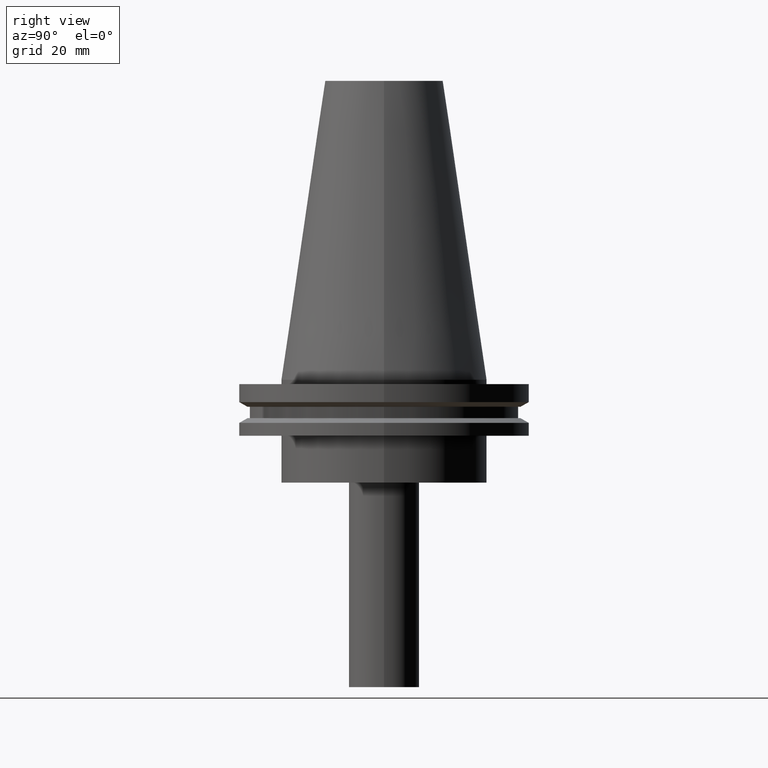
[diagram: clean part render]
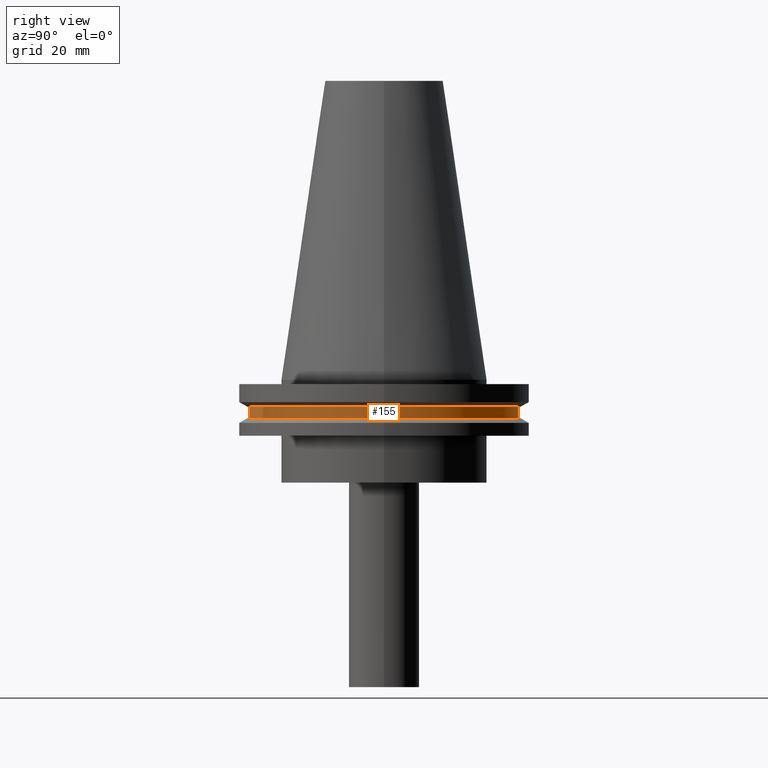
[diagram: same view with one face highlighted and labeled with its STEP entity id]
A machine part, right view. The second image highlights one B-rep face of the part: STEP entity #155.
In plain terms, the highlighted cylindrical surface (bore or boss wall) has radius 45.645 mm, axis along (-0, -0, 1).
Its self-contained STEP definition (entity closure, byte-faithful):
#6 = CARTESIAN_POINT ( 'NONE',  ( 0.000000000000000000, 0.000000000000000000, 101.5999999999999943 ) ) ;
#40 = FACE_OUTER_BOUND ( 'NONE', #391, .T. ) ;
#57 = AXIS2_PLACEMENT_3D ( 'NONE', #6, #220, #315 ) ;
#64 = CARTESIAN_POINT ( 'NONE',  ( 45.64500000000000313, 0.000000000000000000, -9.204999999999991189 ) ) ;
#66 = VERTEX_POINT ( 'NONE', #64 ) ;
#69 = DIRECTION ( 'NONE',  ( 1.000000000000000000, 0.000000000000000000, 0.000000000000000000 ) ) ;
#73 = CYLINDRICAL_SURFACE ( 'NONE', #57, 45.64500000000000313 ) ;
#82 = CARTESIAN_POINT ( 'NONE',  ( 0.000000000000000000, 0.000000000000000000, -13.05499999999999794 ) ) ;
#134 = CIRCLE ( 'NONE', #139, 45.64500000000000313 ) ;
#139 = AXIS2_PLACEMENT_3D ( 'NONE', #82, #171, #380 ) ;
#155 = ADVANCED_FACE ( 'NONE', ( #40, #283 ), #73, .T. ) ;
#171 = DIRECTION ( 'NONE',  ( -0.000000000000000000, -0.000000000000000000, 1.000000000000000000 ) ) ;
#178 = ORIENTED_EDGE ( 'NONE', *, *, #277, .T. ) ;
#182 = EDGE_CURVE ( 'NONE', #66, #66, #291, .T. ) ;
#209 = ORIENTED_EDGE ( 'NONE', *, *, #182, .F. ) ;
#220 = DIRECTION ( 'NONE',  ( -0.000000000000000000, -0.000000000000000000, 1.000000000000000000 ) ) ;
#244 = VERTEX_POINT ( 'NONE', #331 ) ;
#277 = EDGE_CURVE ( 'NONE', #244, #244, #134, .T. ) ;
#283 = FACE_OUTER_BOUND ( 'NONE', #354, .T. ) ;
#291 = CIRCLE ( 'NONE', #301, 45.64500000000000313 ) ;
#301 = AXIS2_PLACEMENT_3D ( 'NONE', #374, #373, #69 ) ;
#315 = DIRECTION ( 'NONE',  ( 1.000000000000000000, 0.000000000000000000, 0.000000000000000000 ) ) ;
#331 = CARTESIAN_POINT ( 'NONE',  ( 45.64500000000000313, 0.000000000000000000, -13.05499999999999794 ) ) ;
#354 = EDGE_LOOP ( 'NONE', ( #178 ) ) ;
#373 = DIRECTION ( 'NONE',  ( -0.000000000000000000, -0.000000000000000000, 1.000000000000000000 ) ) ;
#374 = CARTESIAN_POINT ( 'NONE',  ( 0.000000000000000000, 0.000000000000000000, -9.204999999999991189 ) ) ;
#380 = DIRECTION ( 'NONE',  ( 1.000000000000000000, 0.000000000000000000, 0.000000000000000000 ) ) ;
#391 = EDGE_LOOP ( 'NONE', ( #209 ) ) ;